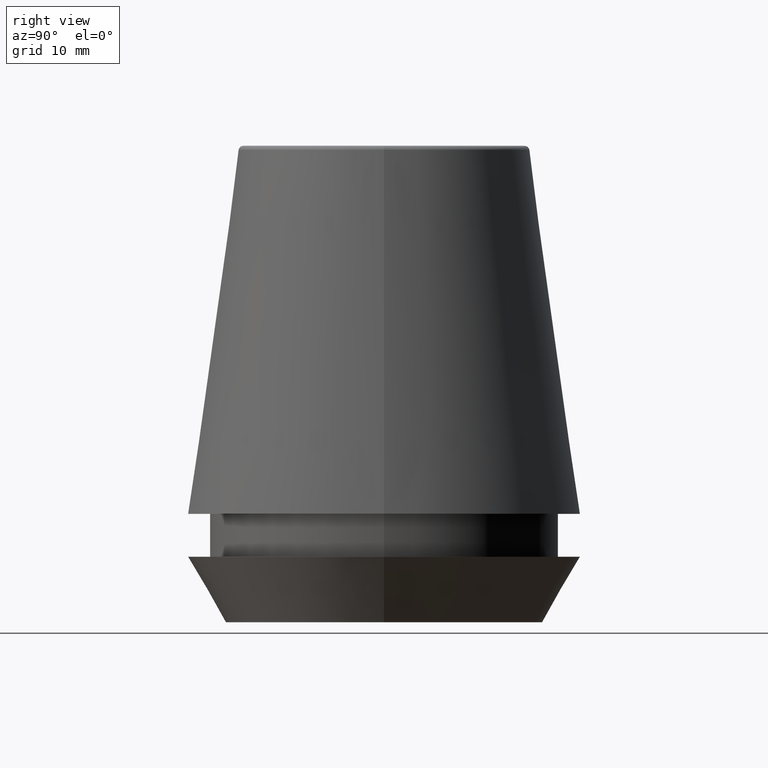
[diagram: clean part render]
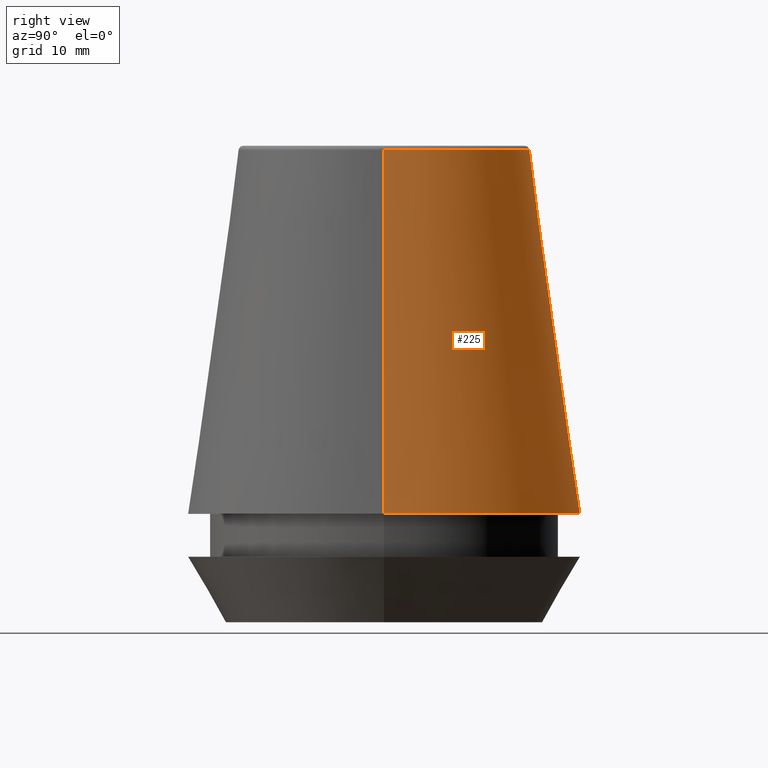
[diagram: same view with one face highlighted and labeled with its STEP entity id]
A machine part, right view. The second image highlights one B-rep face of the part: STEP entity #225.
In plain terms, the highlighted conical surface has half-angle 8 deg.
Its self-contained STEP definition (entity closure, byte-faithful):
#2 = EDGE_CURVE ( 'NONE', #320, #166, #374, .T. ) ;
#16 = DIRECTION ( 'NONE',  ( 1.000000000000000000, 0.0000000000000000000, 0.0000000000000000000 ) ) ;
#21 = ORIENTED_EDGE ( 'NONE', *, *, #2, .T. ) ;
#27 = CARTESIAN_POINT ( 'NONE',  ( 0.0000000000000000000, 0.0000000000000000000, 9.099999999999997900 ) ) ;
#36 = CONICAL_SURFACE ( 'NONE', #243, 16.50032537154048700, 0.1396263401595395900 ) ;
#49 = AXIS2_PLACEMENT_3D ( 'NONE', #287, #141, #16 ) ;
#50 = CARTESIAN_POINT ( 'NONE',  ( -16.50032537154048700, 0.0000000000000000000, 9.099999999999997900 ) ) ;
#68 = AXIS2_PLACEMENT_3D ( 'NONE', #259, #151, #87 ) ;
#70 = FACE_OUTER_BOUND ( 'NONE', #278, .T. ) ;
#87 = DIRECTION ( 'NONE',  ( 1.000000000000000000, 0.0000000000000000000, 0.0000000000000000000 ) ) ;
#139 = LINE ( 'NONE', #154, #203 ) ;
#141 = DIRECTION ( 'NONE',  ( -0.0000000000000000000, -0.0000000000000000000, 1.000000000000000000 ) ) ;
#151 = DIRECTION ( 'NONE',  ( -0.0000000000000000000, -0.0000000000000000000, 1.000000000000000000 ) ) ;
#154 = CARTESIAN_POINT ( 'NONE',  ( 16.50032537154048700, 2.020707065114692300E-015, 9.099999999999997900 ) ) ;
#157 = DIRECTION ( 'NONE',  ( -0.1391731009600586900, 0.0000000000000000000, -0.9902680687415712500 ) ) ;
#166 = VERTEX_POINT ( 'NONE', #369 ) ;
#174 = DIRECTION ( 'NONE',  ( -1.000000000000000000, 0.0000000000000000000, 0.0000000000000000000 ) ) ;
#198 = DIRECTION ( 'NONE',  ( 0.0000000000000000000, 0.0000000000000000000, -1.000000000000000000 ) ) ;
#203 = VECTOR ( 'NONE', #274, 1000.000000000000000 ) ;
#212 = LINE ( 'NONE', #50, #367 ) ;
#225 = ADVANCED_FACE ( 'NONE', ( #70 ), #36, .T. ) ;
#243 = AXIS2_PLACEMENT_3D ( 'NONE', #27, #198, #174 ) ;
#251 = ORIENTED_EDGE ( 'NONE', *, *, #341, .F. ) ;
#254 = CARTESIAN_POINT ( 'NONE',  ( -12.20600611160694300, 0.0000000000000000000, 39.65566924038402900 ) ) ;
#258 = ORIENTED_EDGE ( 'NONE', *, *, #370, .T. ) ;
#259 = CARTESIAN_POINT ( 'NONE',  ( 0.0000000000000000000, 0.0000000000000000000, 9.099999999999997900 ) ) ;
#264 = CIRCLE ( 'NONE', #49, 12.20600611160694300 ) ;
#274 = DIRECTION ( 'NONE',  ( 0.1391731009600586900, 1.704378926181473100E-017, -0.9902680687415712500 ) ) ;
#278 = EDGE_LOOP ( 'NONE', ( #251, #258, #21, #352 ) ) ;
#280 = EDGE_CURVE ( 'NONE', #373, #166, #212, .T. ) ;
#287 = CARTESIAN_POINT ( 'NONE',  ( 0.0000000000000000000, 0.0000000000000000000, 39.65566924038402900 ) ) ;
#289 = VERTEX_POINT ( 'NONE', #315 ) ;
#315 = CARTESIAN_POINT ( 'NONE',  ( 12.20600611160694300, 1.757755848304969800E-015, 39.65566924038402900 ) ) ;
#320 = VERTEX_POINT ( 'NONE', #386 ) ;
#341 = EDGE_CURVE ( 'NONE', #289, #373, #264, .T. ) ;
#352 = ORIENTED_EDGE ( 'NONE', *, *, #280, .F. ) ;
#367 = VECTOR ( 'NONE', #157, 1000.000000000000000 ) ;
#369 = CARTESIAN_POINT ( 'NONE',  ( -16.50032537154048700, 0.0000000000000000000, 9.099999999999997900 ) ) ;
#370 = EDGE_CURVE ( 'NONE', #289, #320, #139, .T. ) ;
#373 = VERTEX_POINT ( 'NONE', #254 ) ;
#374 = CIRCLE ( 'NONE', #68, 16.50032537154048700 ) ;
#386 = CARTESIAN_POINT ( 'NONE',  ( 16.50032537154048700, 2.020707065114692300E-015, 9.099999999999997900 ) ) ;